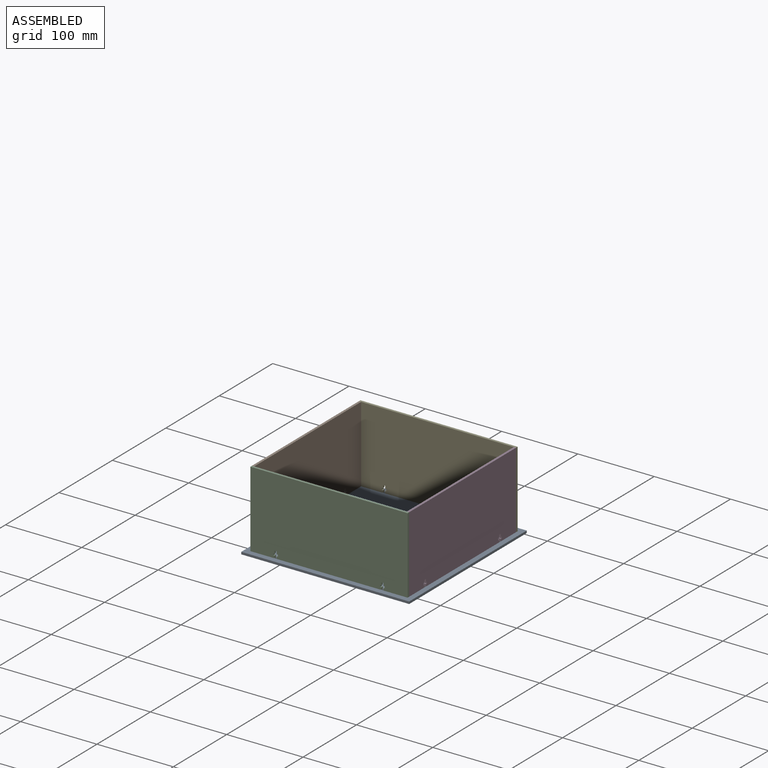
[diagram: assembled view]
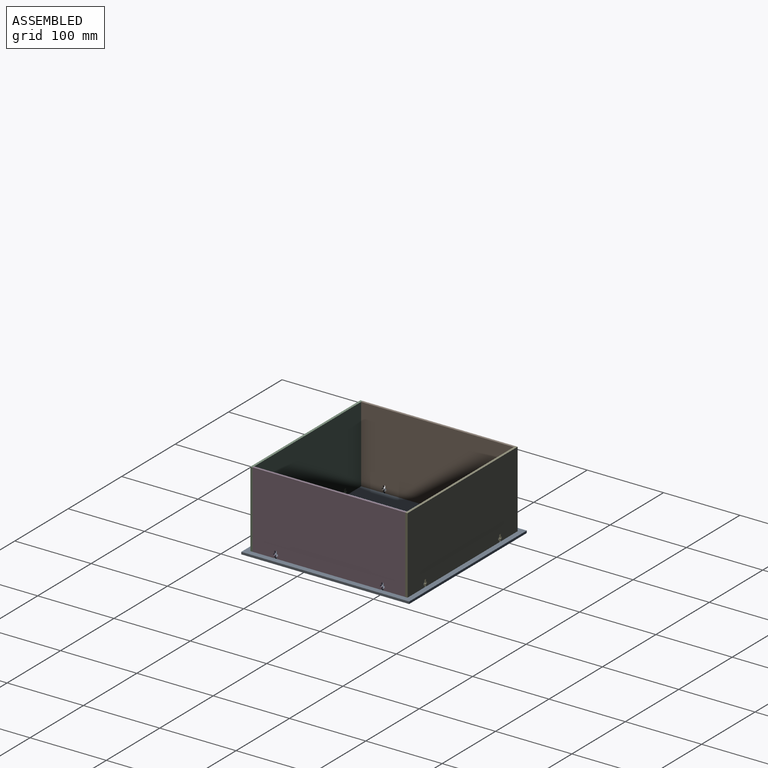
[diagram: assembled view, second angle]
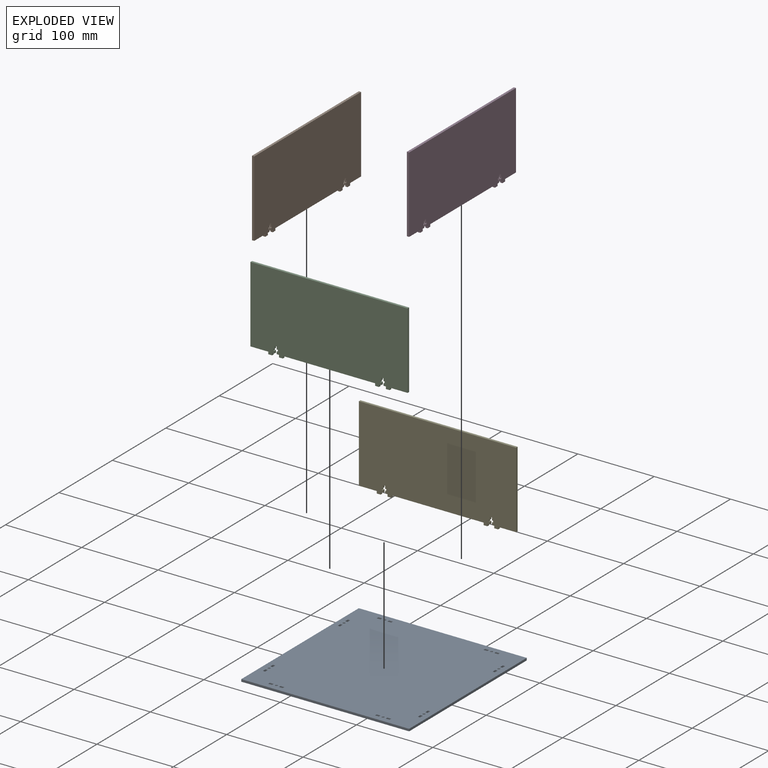
[diagram: exploded view]
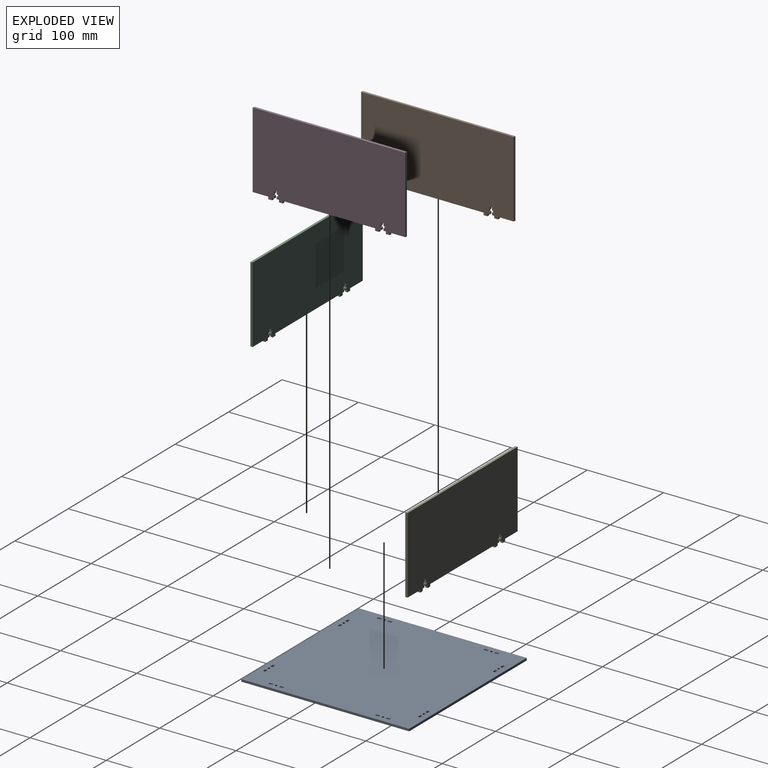
[diagram: exploded view, second angle]
ASSEMBLY  parts=5 mates=4
PART A: 78 faces, bbox 220x220x3 mm
  f0: plane 220x3mm, normal (0,1,0), area 660mm2, adj f1,f75,f76,f77
  f1: plane 220x3mm, normal (-1,0,0), area 660mm2, adj f0,f2,f76,f77
  f2: plane 220x3mm, normal (0,-1,0), area 660mm2, adj f1,f75,f76,f77
  f3: plane 5x3mm, normal (1,0,0), area 15mm2, adj f4,f51,f76,f77
  f4: plane 3x3mm, normal (0,-1,0), area 9mm2, adj f3,f5,f76,f77
  f5: plane 5x3mm, normal (-1,0,0), area 15mm2, adj f4,f51,f76,f77
  f6: plane 5x3mm, normal (1,0,0), area 15mm2, adj f7,f52,f76,f77
  f7: plane 3x3mm, normal (0,-1,0), area 9mm2, adj f6,f8,f76,f77
  f8: plane 5x3mm, normal (-1,0,0), area 15mm2, adj f7,f52,f76,f77
  f9: plane 5x3mm, normal (0,1,0), area 15mm2, adj f10,f53,f76,f77
  f10: plane 3x3mm, normal (1,0,0), area 9mm2, adj f9,f11,f76,f77
  f11: plane 5x3mm, normal (0,-1,0), area 15mm2, adj f10,f53,f76,f77
  f12: plane 5x3mm, normal (0,1,0), area 15mm2, adj f13,f54,f76,f77
  f13: plane 3x3mm, normal (1,0,0), area 9mm2, adj f12,f14,f76,f77
  f14: plane 5x3mm, normal (0,-1,0), area 15mm2, adj f13,f54,f76,f77
  f15: plane 5x3mm, normal (1,0,0), area 15mm2, adj f16,f55,f76,f77
  f16: plane 3x3mm, normal (0,-1,0), area 9mm2, adj f15,f17,f76,f77
  f17: plane 5x3mm, normal (-1,0,0), area 15mm2, adj f16,f55,f76,f77
  f18: plane 3x3mm, normal (0,1,0), area 9mm2, adj f19,f56,f76,f77
  f19: plane 5x3mm, normal (1,0,0), area 15mm2, adj f18,f20,f76,f77
  f20: plane 3x3mm, normal (0,-1,0), area 9mm2, adj f19,f56,f76,f77
  f21: plane 5x3mm, normal (-1,0,0), area 15mm2, adj f22,f57,f76,f77
  f22: plane 3x3mm, normal (0,1,0), area 9mm2, adj f21,f23,f76,f77
  f23: plane 5x3mm, normal (1,0,0), area 15mm2, adj f22,f57,f76,f77
  f24: plane 3x3mm, normal (0,-1,0), area 9mm2, adj f25,f58,f76,f77
  f25: plane 5x3mm, normal (-1,0,0), area 15mm2, adj f24,f26,f76,f77
  f26: plane 3x3mm, normal (0,1,0), area 9mm2, adj f25,f58,f76,f77
  f27: plane 3x3mm, normal (0,-1,0), area 9mm2, adj f28,f59,f76,f77
  f28: plane 5x3mm, normal (-1,0,0), area 15mm2, adj f27,f29,f76,f77
  f29: plane 3x3mm, normal (0,1,0), area 9mm2, adj f28,f59,f76,f77
  f30: plane 5x3mm, normal (0,-1,0), area 15mm2, adj f31,f60,f76,f77
  f31: plane 3x3mm, normal (-1,0,0), area 9mm2, adj f30,f32,f76,f77
  f32: plane 5x3mm, normal (0,1,0), area 15mm2, adj f31,f60,f76,f77
  f33: plane 3x3mm, normal (1,0,0), area 9mm2, adj f34,f61,f76,f77
  f34: plane 5x3mm, normal (0,-1,0), area 15mm2, adj f33,f35,f76,f77
  f35: plane 3x3mm, normal (-1,0,0), area 9mm2, adj f34,f61,f76,f77
  f36: plane 3x3mm, normal (1,0,0), area 9mm2, adj f37,f70,f76,f77
  f37: plane 5x3mm, normal (0,-1,0), area 15mm2, adj f36,f38,f76,f77
  f38: plane 3x3mm, normal (-1,0,0), area 9mm2, adj f37,f70,f76,f77
  f39: plane 3x3mm, normal (1,0,0), area 9mm2, adj f40,f71,f76,f77
  f40: plane 5x3mm, normal (0,-1,0), area 15mm2, adj f39,f41,f76,f77
  f41: plane 3x3mm, normal (-1,0,0), area 9mm2, adj f40,f71,f76,f77
  f42: plane 5x3mm, normal (0,1,0), area 15mm2, adj f43,f72,f76,f77
  f43: plane 3x3mm, normal (1,0,0), area 9mm2, adj f42,f44,f76,f77
  f44: plane 5x3mm, normal (0,-1,0), area 15mm2, adj f43,f72,f76,f77
  f45: plane 5x3mm, normal (0,1,0), area 15mm2, adj f46,f73,f76,f77
  f46: plane 3x3mm, normal (1,0,0), area 9mm2, adj f45,f47,f76,f77
  f47: plane 5x3mm, normal (0,-1,0), area 15mm2, adj f46,f73,f76,f77
  f48: plane 3x3mm, normal (0,-1,0), area 9mm2, adj f49,f74,f76,f77
  f49: plane 5x3mm, normal (-1,0,0), area 15mm2, adj f48,f50,f76,f77
  f50: plane 3x3mm, normal (0,1,0), area 9mm2, adj f49,f74,f76,f77
  f51: plane 3x3mm, normal (0,1,0), area 9mm2, adj f3,f5,f76,f77
  f52: plane 3x3mm, normal (0,1,0), area 9mm2, adj f6,f8,f76,f77
  f53: plane 3x3mm, normal (-1,0,0), area 9mm2, adj f9,f11,f76,f77
  f54: plane 3x3mm, normal (-1,0,0), area 9mm2, adj f12,f14,f76,f77
  f55: plane 3x3mm, normal (0,1,0), area 9mm2, adj f15,f17,f76,f77
  f56: plane 5x3mm, normal (-1,0,0), area 15mm2, adj f18,f20,f76,f77
  f57: plane 3x3mm, normal (0,-1,0), area 9mm2, adj f21,f23,f76,f77
  f58: plane 5x3mm, normal (1,0,0), area 15mm2, adj f24,f26,f76,f77
  f59: plane 5x3mm, normal (1,0,0), area 15mm2, adj f27,f29,f76,f77
  f60: plane 3x3mm, normal (1,0,0), area 9mm2, adj f30,f32,f76,f77
  f61: plane 5x3mm, normal (0,1,0), area 15mm2, adj f33,f35,f76,f77
  f62: cylinder r=1.5mm len=3mm, axis (0,0,-1), area 28.3mm2, adj f76,f77
  f63: cylinder r=1.5mm len=3mm, axis (0,0,-1), area 28.3mm2, adj f76,f77
  f64: cylinder r=1.5mm len=3mm, axis (0,0,-1), area 28.3mm2, adj f76,f77
  f65: cylinder r=1.5mm len=3mm, axis (0,0,-1), area 28.3mm2, adj f76,f77
  f66: cylinder r=1.5mm len=3mm, axis (0,0,-1), area 28.3mm2, adj f76,f77
  f67: cylinder r=1.5mm len=3mm, axis (0,0,-1), area 28.3mm2, adj f76,f77
  f68: cylinder r=1.5mm len=3mm, axis (0,0,-1), area 28.3mm2, adj f76,f77
  f69: cylinder r=1.5mm len=3mm, axis (0,0,-1), area 28.3mm2, adj f76,f77
  f70: plane 5x3mm, normal (0,1,0), area 15mm2, adj f36,f38,f76,f77
  f71: plane 5x3mm, normal (0,1,0), area 15mm2, adj f39,f41,f76,f77
  f72: plane 3x3mm, normal (-1,0,0), area 9mm2, adj f42,f44,f76,f77
  f73: plane 3x3mm, normal (-1,0,0), area 9mm2, adj f45,f47,f76,f77
  f74: plane 5x3mm, normal (1,0,0), area 15mm2, adj f48,f50,f76,f77
  f75: plane 220x3mm, normal (1,0,0), area 660mm2, adj f0,f2,f76,f77
  f76: plane 220x220mm, normal (0,0,1), area 48103.5mm2, adj f0,f1,f2,f3,f4,f5,f6,f7
  f77: plane 220x220mm, normal (0,0,-1), area 48103.5mm2, adj f0,f1,f2,f3,f4,f5,f6,f7
PART B: 46 faces, bbox 200x103x3 mm
  f0: plane 3x1.5mm, normal (0,1,0), area 4.5mm2, adj f1,f43,f44,f45
  f1: plane 3x2.5mm, normal (1,0,0), area 7.5mm2, adj f0,f2,f44,f45
  f2: plane 3x1.5mm, normal (0,-1,0), area 4.5mm2, adj f1,f3,f44,f45
  f3: plane 3.5x3mm, normal (1,0,0), area 10.5mm2, adj f2,f4,f44,f45
  f4: plane 3x3mm, normal (0,-1,0), area 9mm2, adj f3,f5,f44,f45
  f5: plane 3.5x3mm, normal (-1,0,0), area 10.5mm2, adj f4,f6,f44,f45
  f6: plane 3x1.5mm, normal (0,-1,0), area 4.5mm2, adj f5,f7,f44,f45
  f7: plane 3x2.5mm, normal (-1,0,0), area 7.5mm2, adj f6,f8,f44,f45
  f8: plane 3x1.5mm, normal (0,1,0), area 4.5mm2, adj f7,f9,f44,f45
  f9: plane 3x3mm, normal (-1,0,0), area 9mm2, adj f8,f10,f44,f45
  f10: plane 3x3mm, normal (0,-1,0), area 9mm2, adj f9,f11,f44,f45
  f11: plane 3x3mm, normal (-1,0,0), area 9mm2, adj f10,f12,f44,f45
  f12: plane 5x3mm, normal (0,-1,0), area 15mm2, adj f11,f13,f44,f45
  f13: plane 3x3mm, normal (1,0,0), area 9mm2, adj f12,f14,f44,f45
  f14: plane 20.5x3mm, normal (0,-1,0), area 61.5mm2, adj f13,f15,f44,f45
  f15: plane 100x3mm, normal (1,0,0), area 300mm2, adj f14,f16,f44,f45
  f16: plane 200x3mm, normal (0,1,0), area 600mm2, adj f15,f17,f44,f45
  f17: plane 100x3mm, normal (-1,0,0), area 300mm2, adj f16,f18,f44,f45
  f18: plane 20.5x3mm, normal (0,-1,0), area 61.5mm2, adj f17,f19,f44,f45
  f19: plane 3x3mm, normal (-1,0,0), area 9mm2, adj f18,f20,f44,f45
  f20: plane 5x3mm, normal (0,-1,0), area 15mm2, adj f19,f21,f44,f45
  f21: plane 3x3mm, normal (1,0,0), area 9mm2, adj f20,f22,f44,f45
  f22: plane 3x3mm, normal (0,-1,0), area 9mm2, adj f21,f23,f44,f45
  f23: plane 3x3mm, normal (1,0,0), area 9mm2, adj f22,f24,f44,f45
  f24: plane 3x1.5mm, normal (0,1,0), area 4.5mm2, adj f23,f25,f44,f45
  f25: plane 3x2.5mm, normal (1,0,0), area 7.5mm2, adj f24,f26,f44,f45
  f26: plane 3x1.5mm, normal (0,-1,0), area 4.5mm2, adj f25,f27,f44,f45
  f27: plane 3.5x3mm, normal (1,0,0), area 10.5mm2, adj f26,f28,f44,f45
  f28: plane 3x3mm, normal (0,-1,0), area 9mm2, adj f27,f29,f44,f45
  f29: plane 3.5x3mm, normal (-1,0,0), area 10.5mm2, adj f28,f30,f44,f45
  f30: plane 3x1.5mm, normal (0,-1,0), area 4.5mm2, adj f29,f31,f44,f45
  f31: plane 3x2.5mm, normal (-1,0,0), area 7.5mm2, adj f30,f32,f44,f45
  f32: plane 3x1.5mm, normal (0,1,0), area 4.5mm2, adj f31,f33,f44,f45
  f33: plane 3x3mm, normal (-1,0,0), area 9mm2, adj f32,f34,f44,f45
  f34: plane 3x3mm, normal (0,-1,0), area 9mm2, adj f33,f35,f44,f45
  f35: plane 3x3mm, normal (-1,0,0), area 9mm2, adj f34,f36,f44,f45
  f36: plane 5x3mm, normal (0,-1,0), area 15mm2, adj f35,f37,f44,f45
  f37: plane 3x3mm, normal (1,0,0), area 9mm2, adj f36,f38,f44,f45
  f38: plane 121x3mm, normal (0,-1,0), area 363mm2, adj f37,f39,f44,f45
  f39: plane 3x3mm, normal (-1,0,0), area 9mm2, adj f38,f40,f44,f45
  f40: plane 5x3mm, normal (0,-1,0), area 15mm2, adj f39,f41,f44,f45
  f41: plane 3x3mm, normal (1,0,0), area 9mm2, adj f40,f42,f44,f45
  f42: plane 3x3mm, normal (0,-1,0), area 9mm2, adj f41,f43,f44,f45
  f43: plane 3x3mm, normal (1,0,0), area 9mm2, adj f0,f42,f44,f45
  f44: plane 200x103mm, normal (0,0,1), area 19991mm2, adj f0,f1,f2,f3,f4,f5,f6,f7
  f45: plane 200x103mm, normal (0,0,-1), area 19991mm2, adj f0,f1,f2,f3,f4,f5,f6,f7
PART C: 46 faces, bbox 206x103x3 mm
  f0: plane 3x1.5mm, normal (0,1,0), area 4.5mm2, adj f1,f43,f44,f45
  f1: plane 3x2.5mm, normal (1,0,0), area 7.5mm2, adj f0,f2,f44,f45
  f2: plane 3x1.5mm, normal (0,-1,0), area 4.5mm2, adj f1,f3,f44,f45
  f3: plane 3.5x3mm, normal (1,0,0), area 10.5mm2, adj f2,f4,f44,f45
  f4: plane 3x3mm, normal (0,-1,0), area 9mm2, adj f3,f5,f44,f45
  f5: plane 3.5x3mm, normal (-1,0,0), area 10.5mm2, adj f4,f6,f44,f45
  f6: plane 3x1.5mm, normal (0,-1,0), area 4.5mm2, adj f5,f7,f44,f45
  f7: plane 3x2.5mm, normal (-1,0,0), area 7.5mm2, adj f6,f8,f44,f45
  f8: plane 3x1.5mm, normal (0,1,0), area 4.5mm2, adj f7,f9,f44,f45
  f9: plane 3x3mm, normal (-1,0,0), area 9mm2, adj f8,f10,f44,f45
  f10: plane 3x3mm, normal (0,-1,0), area 9mm2, adj f9,f11,f44,f45
  f11: plane 3x3mm, normal (-1,0,0), area 9mm2, adj f10,f12,f44,f45
  f12: plane 5x3mm, normal (0,-1,0), area 15mm2, adj f11,f13,f44,f45
  f13: plane 3x3mm, normal (1,0,0), area 9mm2, adj f12,f14,f44,f45
  f14: plane 23.5x3mm, normal (0,-1,0), area 70.5mm2, adj f13,f15,f44,f45
  f15: plane 100x3mm, normal (1,0,0), area 300mm2, adj f14,f16,f44,f45
  f16: plane 206x3mm, normal (0,1,0), area 618mm2, adj f15,f17,f44,f45
  f17: plane 100x3mm, normal (-1,0,0), area 300mm2, adj f16,f18,f44,f45
  f18: plane 23.5x3mm, normal (0,-1,0), area 70.5mm2, adj f17,f19,f44,f45
  f19: plane 3x3mm, normal (-1,0,0), area 9mm2, adj f18,f20,f44,f45
  f20: plane 5x3mm, normal (0,-1,0), area 15mm2, adj f19,f21,f44,f45
  f21: plane 3x3mm, normal (1,0,0), area 9mm2, adj f20,f22,f44,f45
  f22: plane 3x3mm, normal (0,-1,0), area 9mm2, adj f21,f23,f44,f45
  f23: plane 3x3mm, normal (1,0,0), area 9mm2, adj f22,f24,f44,f45
  f24: plane 3x1.5mm, normal (0,1,0), area 4.5mm2, adj f23,f25,f44,f45
  f25: plane 3x2.5mm, normal (1,0,0), area 7.5mm2, adj f24,f26,f44,f45
  f26: plane 3x1.5mm, normal (0,-1,0), area 4.5mm2, adj f25,f27,f44,f45
  f27: plane 3.5x3mm, normal (1,0,0), area 10.5mm2, adj f26,f28,f44,f45
  f28: plane 3x3mm, normal (0,-1,0), area 9mm2, adj f27,f29,f44,f45
  f29: plane 3.5x3mm, normal (-1,0,0), area 10.5mm2, adj f28,f30,f44,f45
  f30: plane 3x1.5mm, normal (0,-1,0), area 4.5mm2, adj f29,f31,f44,f45
  f31: plane 3x2.5mm, normal (-1,0,0), area 7.5mm2, adj f30,f32,f44,f45
  f32: plane 3x1.5mm, normal (0,1,0), area 4.5mm2, adj f31,f33,f44,f45
  f33: plane 3x3mm, normal (-1,0,0), area 9mm2, adj f32,f34,f44,f45
  f34: plane 3x3mm, normal (0,-1,0), area 9mm2, adj f33,f35,f44,f45
  f35: plane 3x3mm, normal (-1,0,0), area 9mm2, adj f34,f36,f44,f45
  f36: plane 5x3mm, normal (0,-1,0), area 15mm2, adj f35,f37,f44,f45
  f37: plane 3x3mm, normal (1,0,0), area 9mm2, adj f36,f38,f44,f45
  f38: plane 121x3mm, normal (0,-1,0), area 363mm2, adj f37,f39,f44,f45
  f39: plane 3x3mm, normal (-1,0,0), area 9mm2, adj f38,f40,f44,f45
  f40: plane 5x3mm, normal (0,-1,0), area 15mm2, adj f39,f41,f44,f45
  f41: plane 3x3mm, normal (1,0,0), area 9mm2, adj f40,f42,f44,f45
  f42: plane 3x3mm, normal (0,-1,0), area 9mm2, adj f41,f43,f44,f45
  f43: plane 3x3mm, normal (1,0,0), area 9mm2, adj f0,f42,f44,f45
  f44: plane 206x103mm, normal (0,0,1), area 20591mm2, adj f0,f1,f2,f3,f4,f5,f6,f7
  f45: plane 206x103mm, normal (0,0,-1), area 20591mm2, adj f0,f1,f2,f3,f4,f5,f6,f7
PART D: same geometry as B
PART E: same geometry as C
PLACE A t=(1.84,18.97,7.06)mm
PLACE B rot(axis=(0.58,-0.58,-0.58),120deg) t=(-248.06,137.85,431.75)mm
PLACE C rot(axis=(1,0,0),90deg) t=(-358.4,-179.78,176.15)mm
PLACE D rot(axis=(0.58,0.58,0.58),120deg) t=(-48.06,-297.4,431.75)mm
PLACE E rot(axis=(1,0,0),90deg) t=(-358.4,23.22,176.15)mm
MATE fastened C.f12 <-> A.f77  axis (0,0,-1) through (-71.06,-181.28,7.06)mm
MATE fastened D.f12 <-> A.f77  axis (0,0,-1) through (-46.56,-2.78,7.06)mm
MATE fastened E.f12 <-> A.f77  axis (0,0,-1) through (-71.06,21.72,7.06)mm
MATE fastened B.f20 <-> A.f77  axis (0,0,-1) through (-249.56,-2.78,7.06)mm
